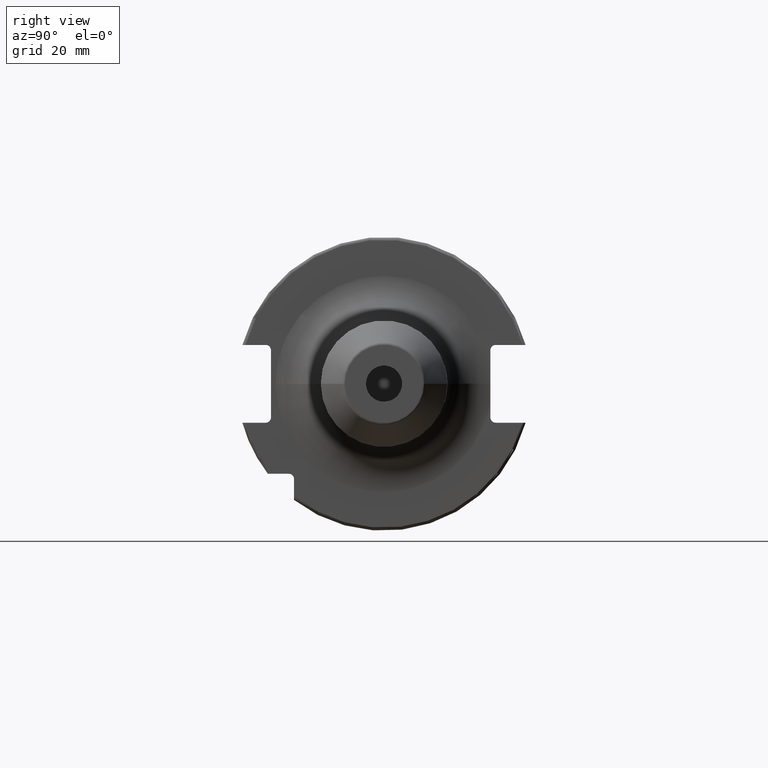
[diagram: clean part render]
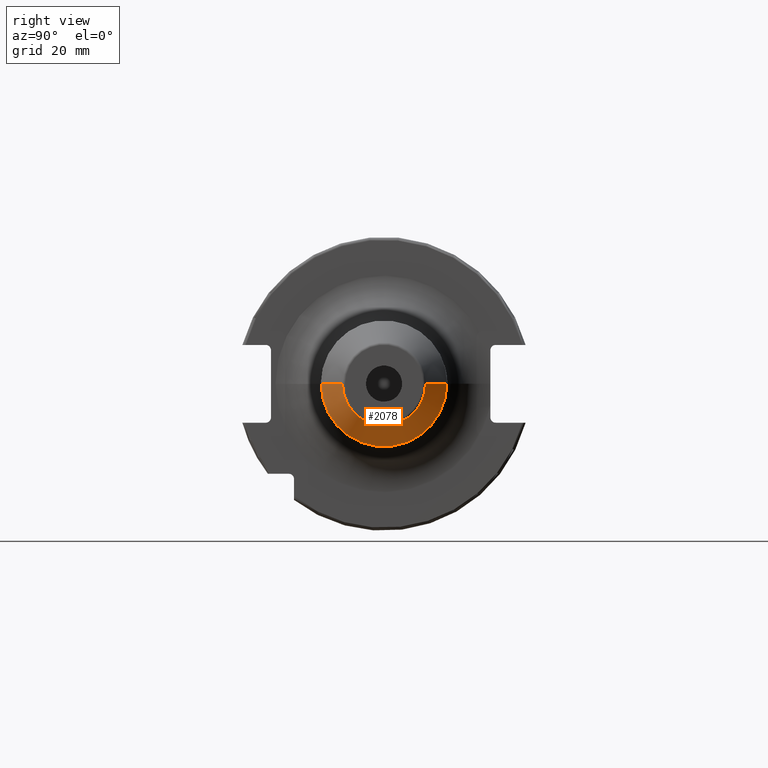
[diagram: same view with one face highlighted and labeled with its STEP entity id]
A machine part, right view. The second image highlights one B-rep face of the part: STEP entity #2078.
In plain terms, the highlighted conical surface has half-angle 30 deg.
Its self-contained STEP definition (entity closure, byte-faithful):
#343=CARTESIAN_POINT('',(8.723205080757E1,0.E0,0.E0));
#344=DIRECTION('',(-1.E0,0.E0,0.E0));
#345=DIRECTION('',(0.E0,1.E0,0.E0));
#346=AXIS2_PLACEMENT_3D('',#343,#344,#345);
#348=DIRECTION('',(-8.660254037844E-1,-5.E-1,-1.179421058709E-13));
#349=VECTOR('',#348,1.416580753731E1);
#350=CARTESIAN_POINT('',(9.95E1,-1.378312163513E1,2.174514430006E-12));
#351=LINE('',#350,#349);
#352=CARTESIAN_POINT('',(9.95E1,0.E0,0.E0));
#353=DIRECTION('',(-1.E0,0.E0,0.E0));
#354=DIRECTION('',(0.E0,1.E0,0.E0));
#355=AXIS2_PLACEMENT_3D('',#352,#353,#354);
#357=DIRECTION('',(-8.660254037844E-1,5.E-1,1.178104622154E-13));
#358=VECTOR('',#357,1.416580753731E1);
#359=CARTESIAN_POINT('',(9.95E1,1.378312163513E1,-2.174932946954E-12));
#360=LINE('',#359,#358);
#1660=CARTESIAN_POINT('',(8.723205080757E1,2.086602540378E1,0.E0));
#1661=CARTESIAN_POINT('',(8.723205080757E1,-2.086602540378E1,0.E0));
#1662=VERTEX_POINT('',#1660);
#1663=VERTEX_POINT('',#1661);
#1664=CARTESIAN_POINT('',(9.95E1,1.378312163513E1,0.E0));
#1665=CARTESIAN_POINT('',(9.95E1,-1.378312163513E1,0.E0));
#1666=VERTEX_POINT('',#1664);
#1667=VERTEX_POINT('',#1665);
#2064=CARTESIAN_POINT('',(9.336602540378E1,0.E0,0.E0));
#2065=DIRECTION('',(-1.E0,0.E0,0.E0));
#2066=DIRECTION('',(0.E0,1.E0,0.E0));
#2067=AXIS2_PLACEMENT_3D('',#2064,#2065,#2066);
#2068=CONICAL_SURFACE('',#2067,1.732457351946E1,3.E1);
#2070=ORIENTED_EDGE('',*,*,#2069,.T.);
#2072=ORIENTED_EDGE('',*,*,#2071,.F.);
#2073=ORIENTED_EDGE('',*,*,#2054,.F.);
#2075=ORIENTED_EDGE('',*,*,#2074,.T.);
#2076=EDGE_LOOP('',(#2070,#2072,#2073,#2075));
#2077=FACE_OUTER_BOUND('',#2076,.F.);
#2078=ADVANCED_FACE('',(#2077),#2068,.T.);
#347=CIRCLE('',#346,2.086602540378E1);
#356=CIRCLE('',#355,1.378312163513E1);
#2054=EDGE_CURVE('',#1666,#1667,#356,.T.);
#2069=EDGE_CURVE('',#1662,#1663,#347,.T.);
#2071=EDGE_CURVE('',#1667,#1663,#351,.T.);
#2074=EDGE_CURVE('',#1666,#1662,#360,.T.);